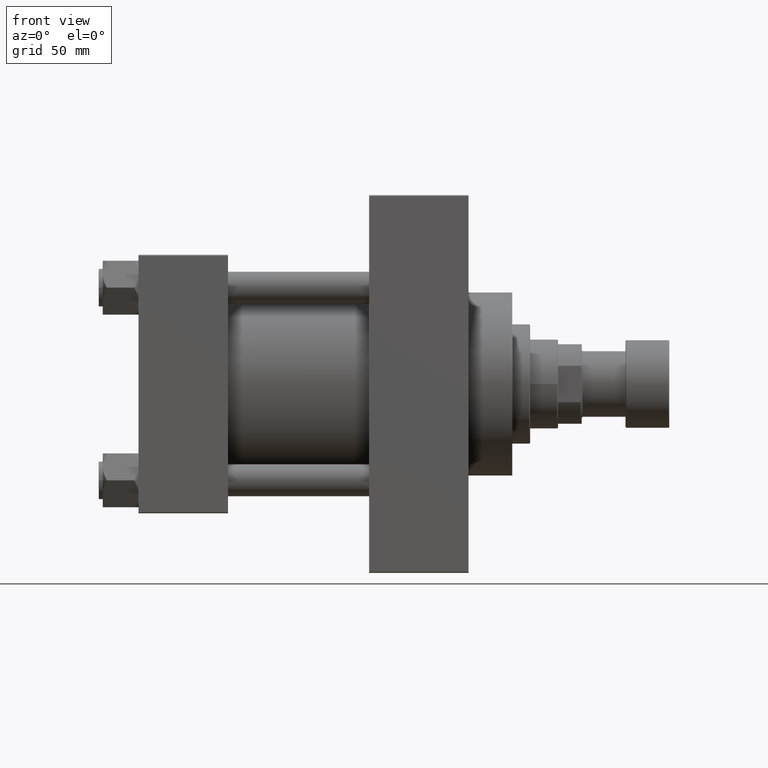
[diagram: clean part render]
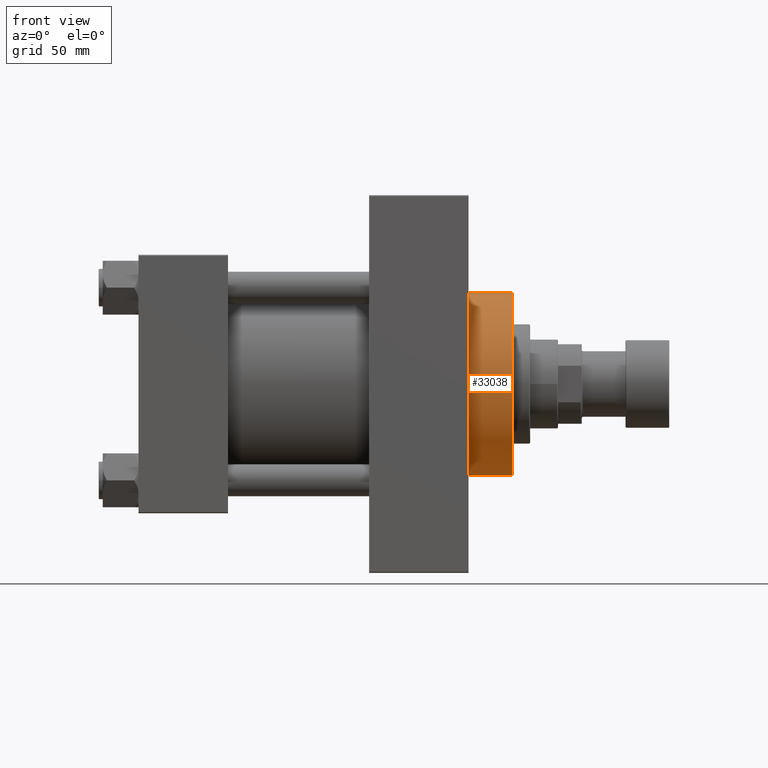
[diagram: same view with one face highlighted and labeled with its STEP entity id]
A machine part, front view. The second image highlights one B-rep face of the part: STEP entity #33038.
In plain terms, the highlighted cylindrical surface (partial cylindrical patch) has radius 46 mm, axis along (-1, -0, -0).
Its self-contained STEP definition (entity closure, byte-faithful):
#116 = EDGE_CURVE ( 'NONE', #293, #29306, #46091, .T. ) ;
#293 = VERTEX_POINT ( 'NONE', #21302 ) ;
#327 = EDGE_CURVE ( 'NONE', #29306, #24238, #27789, .T. ) ;
#1296 = CARTESIAN_POINT ( 'NONE',  ( 187.9999999999999716, 5.633375276077824704E-15, -46.00000000000000000 ) ) ;
#4526 = VECTOR ( 'NONE', #30205, 1000.000000000000000 ) ;
#4542 = EDGE_CURVE ( 'NONE', #37327, #24238, #7995, .T. ) ;
#7737 = CARTESIAN_POINT ( 'NONE',  ( 187.9999999999999716, 5.633375276077824704E-15, -46.00000000000000000 ) ) ;
#7865 = CARTESIAN_POINT ( 'NONE',  ( 187.9999999999999716, 0.000000000000000000, 0.000000000000000000 ) ) ;
#7995 = LINE ( 'NONE', #7737, #4526 ) ;
#11586 = ORIENTED_EDGE ( 'NONE', *, *, #43167, .F. ) ;
#18298 = AXIS2_PLACEMENT_3D ( 'NONE', #44471, #32980, #47177 ) ;
#18348 = CARTESIAN_POINT ( 'NONE',  ( 165.9999999999999716, 0.000000000000000000, 0.000000000000000000 ) ) ;
#19830 = DIRECTION ( 'NONE',  ( 0.000000000000000000, 0.000000000000000000, 1.000000000000000000 ) ) ;
#21302 = CARTESIAN_POINT ( 'NONE',  ( 187.9999999999999716, 0.000000000000000000, 46.00000000000000000 ) ) ;
#21439 = CIRCLE ( 'NONE', #18298, 46.00000000000000000 ) ;
#21764 = AXIS2_PLACEMENT_3D ( 'NONE', #7865, #34731, #19830 ) ;
#22181 = EDGE_LOOP ( 'NONE', ( #45179, #11586, #35661, #22406 ) ) ;
#22406 = ORIENTED_EDGE ( 'NONE', *, *, #327, .T. ) ;
#24238 = VERTEX_POINT ( 'NONE', #29641 ) ;
#24642 = AXIS2_PLACEMENT_3D ( 'NONE', #18348, #25933, #33493 ) ;
#25933 = DIRECTION ( 'NONE',  ( 1.000000000000000000, 0.000000000000000000, 0.000000000000000000 ) ) ;
#26413 = FACE_OUTER_BOUND ( 'NONE', #22181, .T. ) ;
#26540 = DIRECTION ( 'NONE',  ( -1.000000000000000000, -0.000000000000000000, -0.000000000000000000 ) ) ;
#27789 = CIRCLE ( 'NONE', #24642, 46.00000000000000000 ) ;
#29306 = VERTEX_POINT ( 'NONE', #46126 ) ;
#29641 = CARTESIAN_POINT ( 'NONE',  ( 165.9999999999999716, 5.633375276077824704E-15, -46.00000000000000000 ) ) ;
#30097 = VECTOR ( 'NONE', #26540, 1000.000000000000000 ) ;
#30205 = DIRECTION ( 'NONE',  ( -1.000000000000000000, -0.000000000000000000, -0.000000000000000000 ) ) ;
#32980 = DIRECTION ( 'NONE',  ( 1.000000000000000000, 0.000000000000000000, 0.000000000000000000 ) ) ;
#33038 = ADVANCED_FACE ( 'NONE', ( #26413 ), #34492, .T. ) ;
#33493 = DIRECTION ( 'NONE',  ( 0.000000000000000000, 0.000000000000000000, -1.000000000000000000 ) ) ;
#34492 = CYLINDRICAL_SURFACE ( 'NONE', #21764, 46.00000000000000000 ) ;
#34731 = DIRECTION ( 'NONE',  ( -1.000000000000000000, -0.000000000000000000, -0.000000000000000000 ) ) ;
#35661 = ORIENTED_EDGE ( 'NONE', *, *, #116, .T. ) ;
#37327 = VERTEX_POINT ( 'NONE', #1296 ) ;
#37768 = CARTESIAN_POINT ( 'NONE',  ( 187.9999999999999716, 0.000000000000000000, 46.00000000000000000 ) ) ;
#43167 = EDGE_CURVE ( 'NONE', #293, #37327, #21439, .T. ) ;
#44471 = CARTESIAN_POINT ( 'NONE',  ( 187.9999999999999716, 0.000000000000000000, 0.000000000000000000 ) ) ;
#45179 = ORIENTED_EDGE ( 'NONE', *, *, #4542, .F. ) ;
#46091 = LINE ( 'NONE', #37768, #30097 ) ;
#46126 = CARTESIAN_POINT ( 'NONE',  ( 165.9999999999999716, 0.000000000000000000, 46.00000000000000000 ) ) ;
#47177 = DIRECTION ( 'NONE',  ( 0.000000000000000000, 0.000000000000000000, -1.000000000000000000 ) ) ;